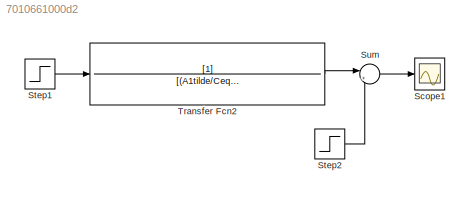
MODEL slx_7010661000d2
KIND model
CONFIG AbsTol = auto
CONFIG EnableMultiTasking = off
CONFIG FixedStep = auto
CONFIG InitFcn = Rm=3.15;\nLm=0.0015;\nK=1.028;\nfm=0.16805;\nA2=0.0033153;\nA1=0.045721;\nL01=0.2625;\nm2=0.24355;\nA1tilde=A1+A2+m2*L01*L01;\nA2tilde=A1tilde-A2;\nf=0.070633;\nlg1=0.16655703376925832;\nm1=0.66984;\ng=9.8;\nCeq=L01*m2*g+lg1*m1*g;\n\n
CONFIG MaxStep = auto
CONFIG MinStep = auto
CONFIG RelTol = 1e-3
CONFIG SampleTimeConstraint = Unconstrained
CONFIG SolverName = VariableStepAuto
CONFIG StartTime = 0.0
CONFIG StopTime = 10
BLOCK [Scope] Scope1
  Floating = off
  NumInputPorts = 1
  Ports = [1]
  ScopeSpecificationString = Simulink.scopes.TimeScopeBlockCfg('CurrentConfiguration', extmgr.ConfigurationSet(extmgr.Configuration('Core','General UI',true),extmgr.Configuration('Core','Source UI',true),extmgr.Configuration('Sources','WiredSimulink',true,'DataLoggingVariableName','ScopeData1'),extmgr.Configuration('Visuals','Time Domain',true,'SerializedDisplays',{struct('MinYLimReal','-1.27191','MaxYLimReal','0.97525','YLab...<+1391ch>
BLOCK [Step] Step1
  After = pi/3
  SampleTime = 0
  Time = 0
BLOCK [Step] Step2
  After = pi/3
  SampleTime = 0
  Time = 0
BLOCK [Sum] Sum
  Inputs = |+-
  Ports = [2, 1]
BLOCK [TransferFcn] Transfer Fcn2
  Denominator = [(A1tilde/Ceq) f/Ceq 1]
LINE Step1:1 -> Transfer Fcn2:1
LINE Step2:1 -> Sum:2
LINE Sum:1 -> Scope1:1
LINE Transfer Fcn2:1 -> Sum:1
